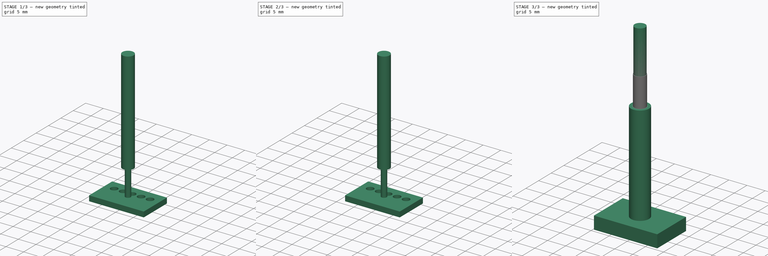
[diagram: build sequence overview — one tinted view per stage of 3, left to right]
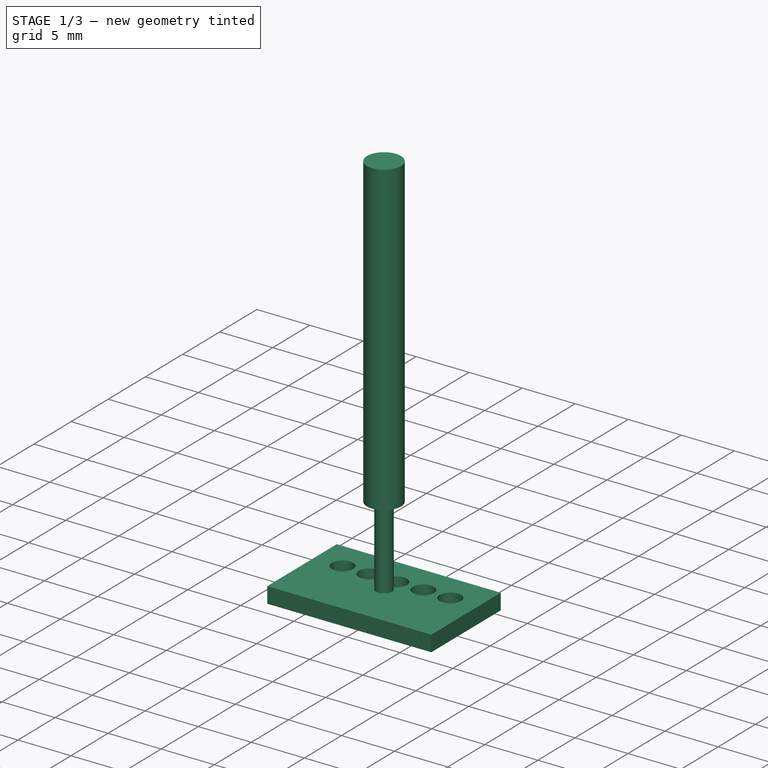
[diagram: stage 1 of 3 — iso view after this stage's code; geometry added in this stage tinted green]
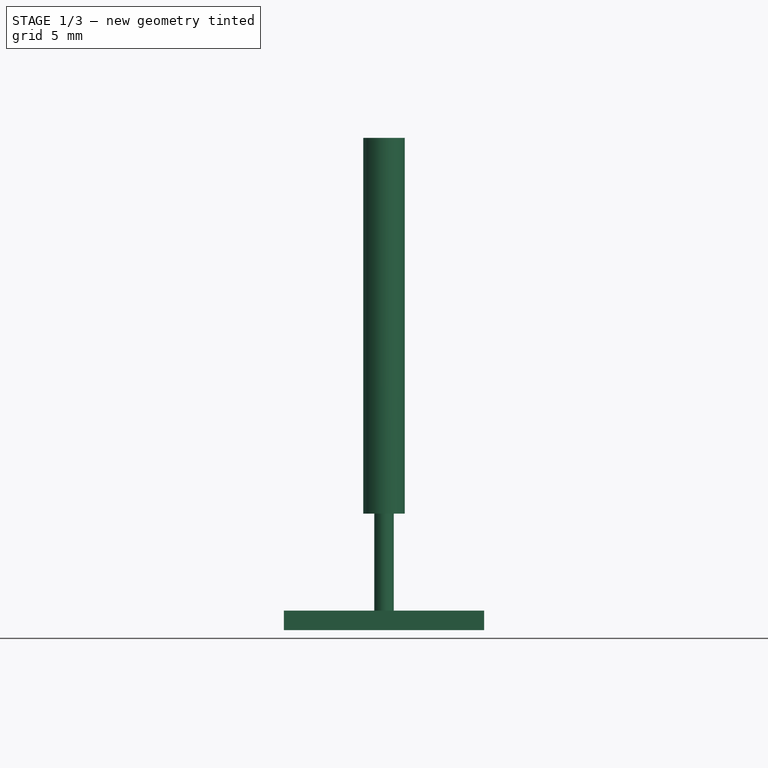
[diagram: stage 1 of 3 — front view after this stage's code; geometry added in this stage tinted green]
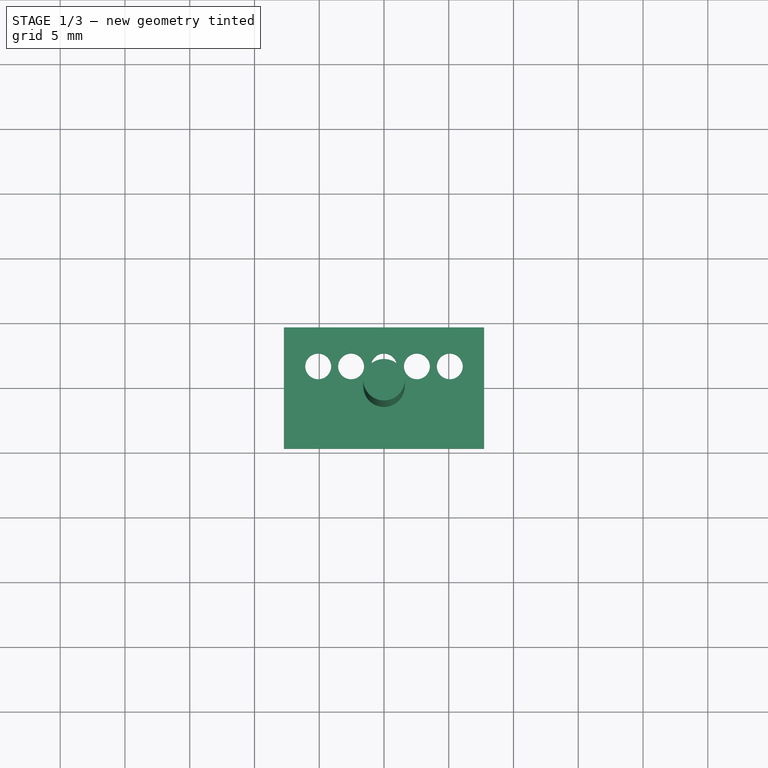
[diagram: stage 1 of 3 — top view after this stage's code; geometry added in this stage tinted green]
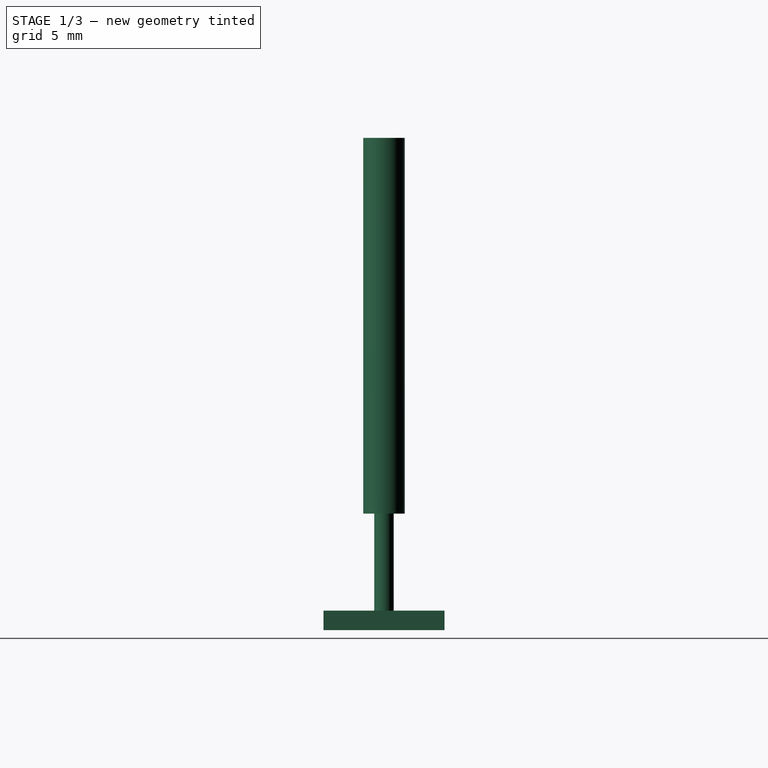
[diagram: stage 1 of 3 — right view after this stage's code; geometry added in this stage tinted green]
FCSTD DOCUMENT  (FreeCAD 0.20R29177 (Git))
Label: PCB connector without drilling gaps
License: All rights reserved
LicenseURL: http://en.wikipedia.org/wiki/All_rights_reserved
objects: Part::FeaturePython×4, Path::FeaturePython×4, App::DocumentObjectGroup×3, Sketcher::SketchObject×1, PartDesign::Pad×1, PartDesign::Body×1, App::FeaturePython×1
note: 9 computed .brp shape members not serialized (recipe doc carries the construction recipe); baked Part::Feature solids carry a one-line shape summary decoded from their .brp

FEATURE [Sketcher::SketchObject] Sketch
  FullyConstrained = true
  MapMode = 5
  Support = -> [XY_Plane]
  sketch-geometry (15):
    g0: LineSegment StartX=-7.73 StartY=4.675 StartZ=0 EndX=7.73 EndY=4.675 EndZ=0
    g1: LineSegment StartX=7.73 StartY=4.675 StartZ=0 EndX=7.73 EndY=-4.675 EndZ=0
    g2: LineSegment StartX=7.73 StartY=-4.675 StartZ=0 EndX=-7.73 EndY=-4.675 EndZ=0
    g3: LineSegment StartX=-7.73 StartY=-4.675 StartZ=0 EndX=-7.73 EndY=4.675 EndZ=0
    g4: LineSegment StartX=-7.73 StartY=1.675 StartZ=0 EndX=7.73 EndY=1.675 EndZ=0
    g5: LineSegment StartX=5.08 StartY=4.675 StartZ=0 EndX=5.08 EndY=-4.675 EndZ=0
    g6: LineSegment StartX=2.54 StartY=4.675 StartZ=0 EndX=2.54 EndY=-4.675 EndZ=0
    g7: LineSegment StartX=6e-16 StartY=-4.675 StartZ=0 EndX=6e-16 EndY=4.675 EndZ=0
    g8: LineSegment StartX=-2.54 StartY=4.675 StartZ=0 EndX=-2.54 EndY=-4.675 EndZ=0
    g9: LineSegment StartX=-5.08 StartY=-4.675 StartZ=0 EndX=-5.08 EndY=4.675 EndZ=0
    g10: Circle CenterX=5.08 CenterY=1.675 CenterZ=0 NormalX=0 NormalY=0 NormalZ=1 AngleXU=0 Radius=1
    g11: Circle CenterX=2.54 CenterY=1.675 CenterZ=0 NormalX=0 NormalY=0 NormalZ=1 AngleXU=0 Radius=1
    g12: Circle CenterX=6e-16 CenterY=1.675 CenterZ=0 NormalX=0 NormalY=0 NormalZ=1 AngleXU=0 Radius=1
    g13: Circle CenterX=-2.54 CenterY=1.675 CenterZ=0 NormalX=0 NormalY=0 NormalZ=1 AngleXU=0 Radius=1
    g14: Circle CenterX=-5.08 CenterY=1.675 CenterZ=0 NormalX=0 NormalY=0 NormalZ=1 AngleXU=0 Radius=1
  constraints (50):
    c: Coincident(g0,g1)
    c: Coincident(g1,g2)
    c: Coincident(g2,g3)
    c: Coincident(g3,g0)
    c: Horizontal(g0)
    c: Horizontal(g2)
    c: Vertical(g1)
    c: Vertical(g3)
    c: Symmetric(g0,g1,g-1)
    c: DistanceY(g3,g3) = 9.35
    c: DistanceX(g0,g0) = 15.46
    c: PointOnObject(g4,g3)
    c: PointOnObject(g4,g1)
    c: Horizontal(g4)
    c: PointOnObject(g5,g0)
    c: PointOnObject(g5,g2)
    c: Vertical(g5)
    c: Distance(g5,g0) = 2.65
    c: Distance(g4,g1) = 6.35
    c: PointOnObject(g6,g0)
    c: PointOnObject(g6,g2)
    c: Vertical(g6)
    c: PointOnObject(g7,g2)
    c: PointOnObject(g7,g0)
    c: Vertical(g7)
    c: PointOnObject(g8,g0)
    c: PointOnObject(g8,g2)
    c: Vertical(g8)
    c: PointOnObject(g9,g2)
    c: PointOnObject(g9,g0)
    c: Vertical(g9)
    c: Distance(g6,g5) = 2.54
    c: Distance(g6,g7) = 2.54
    c: Distance(g7,g8) = 2.54
    c: Distance(g8,g9) = 2.54
    c: PointOnObject(g10,g5)
    c: Diameter(g10) = 2
    c: PointOnObject(g10,g4)
    c: Diameter(g11) = 2
    c: Equal(g14,g13)
    c: Equal(g14,g12)
    c: Diameter(g14) = 2
    c: PointOnObject(g14,g4)
    c: PointOnObject(g14,g9)
    c: PointOnObject(g13,g4)
    c: PointOnObject(g13,g8)
    c: PointOnObject(g12,g4)
    c: PointOnObject(g12,g7)
    c: PointOnObject(g11,g4)
    c: PointOnObject(g11,g6)
FEATURE [PartDesign::Pad] Pad
  Direction = (0,0,1)
  Length = 1.5
  Length2 = 10
  Profile = -> Sketch
  ReferenceAxis = -> Sketch [N_Axis]
  Refine = true
  Type = 0
FEATURE [Part::FeaturePython] ToolBit001  label="1.5mm_Endmill"  # Path/CAM toolbit (typed FeaturePython)
  BitPropertyNames = Chipload | CuttingEdgeHeight | Diameter | Flutes | Length | Material | ShankDiameter | SpindleDirection
  BitShape = C:/Program Files/FreeCAD 0.20/Mod\Path\Tools\Shape\endmill.fcstd
  Chipload = 0
  CuttingEdgeHeight = 9
  Diameter = 1.5
  File = <userpath>/AppData/Roaming/FreeCAD/Macro/Bit/1.5mm_Endmill.fctb
  Flutes = 0
  Length = 38
  Material = 0
  ShankDiameter = 3.2
  ShapeName = endmill
  SpindleDirection = 0
FEATURE [Path::FeaturePython] __5mm_Endmill  label="1.5mm_Endmill001"  # Path/CAM operation (typed FeaturePython)
  HorizFeed = 0
  HorizRapid = 0
  SpindleDir = 0
  SpindleSpeed = 0
  Tool = -> ToolBit001
  ToolNumber = 2
  VertFeed = 0
  VertRapid = 0
  expr: HorizRapid = SetupSheet.HorizRapid
  expr: VertRapid = SetupSheet.VertRapid
FEATURE [App::DocumentObjectGroup] Tools
  Group = -> [TC__Default_Tool,__5mm_Endmill]
FEATURE [Path::FeaturePython] MillFace  # Path/CAM operation (typed FeaturePython)
  Active = true
  AreaParams:
    Tolerance = 1e-07
    FitArcs = True
    Simplify = False
    CleanDistance = 0.0
    Accuracy = 0.01
    Unit = 1.0
    MinArcPoints = 4
    MaxArcPoints = 100
    ClipperScale = 10000000.0
    Fill = 0
    Coplanar = 0
    Reorient = True
    Outline = False
    Explode = False
    OpenMode = 0
    Deflection = 0.01
    SubjectFill = 0
    ClipFill = 0
    Offset = 0.0
    ExtraPass = 0
    Stepover = 0.0
    LastStepover = 0.0
    JoinType = 0
    EndType = 0
    MiterLimit = 2.0
    RoundPrecision = 0.0
    PocketMode = 4
    ToolRadius = 0.75
    PocketExtraOffset = 0.0
    PocketStepover = 0.75
    PocketLastStepover = 0.0
    FromCenter = True
    Angle = 45.0
    AngleShift = 0.0
    Shift = 0.0
    Thicken = False
    SectionCount = -1
    Stepdown = 1.0
    SectionOffset = 0.0
    SectionTolerance = 1e-06
    SectionMode = 2
    Project = False
  Base = -> [Clone]
  BoundaryShape = 2
  ClearEdges = false
  ClearanceHeight = 7.5
  CoolantMode = 0
  CutMode = 0
  CycleTime = Cycletime Error
  ExcludeRaisedAreas = false
  ExtraOffset = 0
  FinalDepth = 0.2
  FinishDepth = 0
  KeepToolDown = false
  MinTravel = false
  OffsetPattern = 2
  OpFinalDepth = 1.5
  OpStartDepth = 2.5
  OpStockZMax = 2.5
  OpStockZMin = -1
  OpToolDiameter = 1.5
  PathParams = {'orientation': 1, 'feedrate': 0.0, 'feedrate_v': 0.0, 'verbose': True, 'resume_height': 5.5, 'retraction': 7.5, 'return_end': True, 'preamble': False, 'start': Vector (0.0, 0.0, 0.0)}
  PocketLastStepOver = 0
  SafeHeight = 5.5
  SplitArcs = false
  StartAt = 0
  StartDepth = 0
  StartPoint = (0,0,0)
  StepDown = 0.2
  StepOver = 50
  ToolController = -> __5mm_Endmill
  UseStartPoint = true
  ZigZagAngle = 45
  expr: ClearanceHeight = OpStockZMax + SetupSheet.ClearanceHeightOffset
  expr: FinalDepth = 0.2
  expr: SafeHeight = OpStockZMax + SetupSheet.SafeHeightOffset
  expr: StepDown = 0.2
FEATURE [App::DocumentObjectGroup] Operations
  Group = -> [MillFace]
FEATURE [Path::FeaturePython] Job  # Path/CAM operation (typed FeaturePython)
  CycleTime = 00:00:00
  Fixtures = G54
  GeometryTolerance = 0.01
  JobType = 0
  Model = -> Model
  Operations = -> Operations
  OrderOutputBy = 0
  PostProcessor = 8
  SetupSheet = -> SetupSheet
  SplitOutput = false
  Stock = -> Stock
  Tools = -> Tools
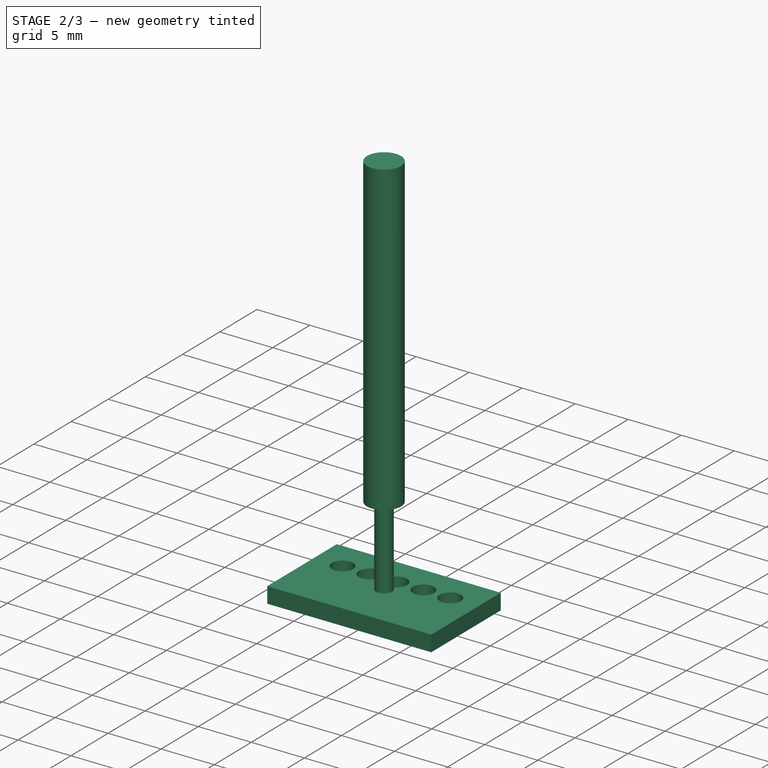
[diagram: stage 2 of 3 — iso view after this stage's code; geometry added in this stage tinted green]
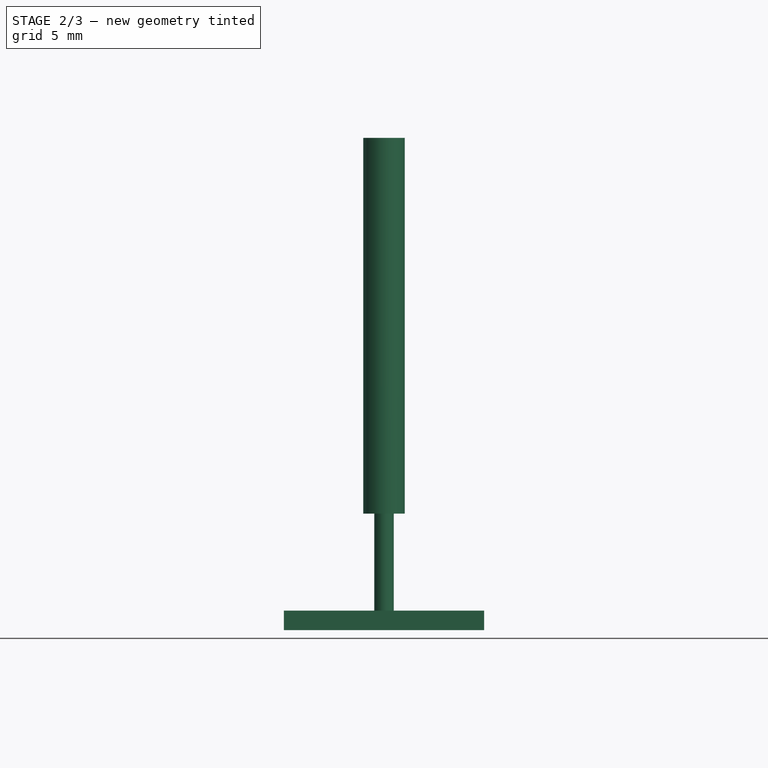
[diagram: stage 2 of 3 — front view after this stage's code; geometry added in this stage tinted green]
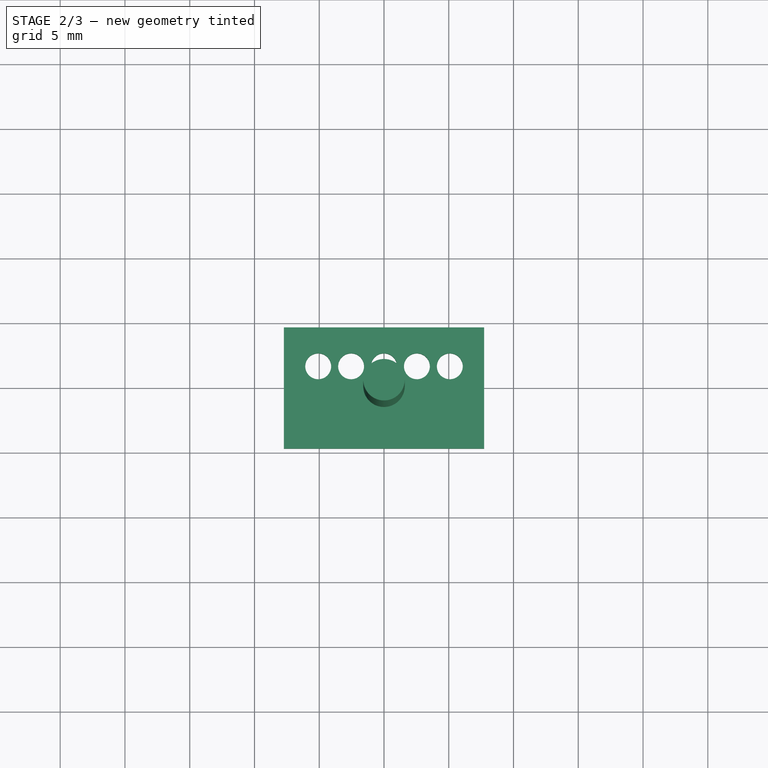
[diagram: stage 2 of 3 — top view after this stage's code; geometry added in this stage tinted green]
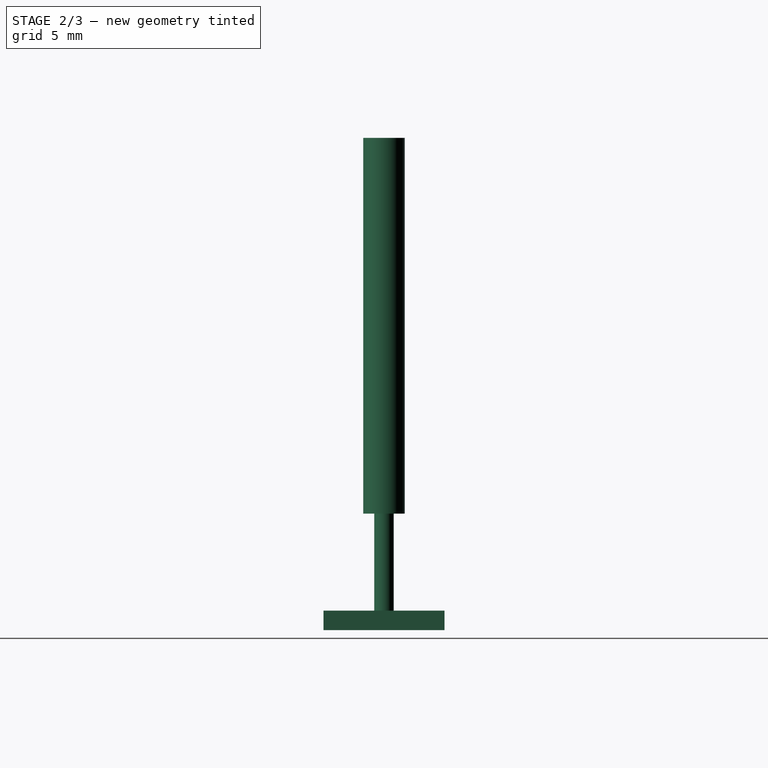
[diagram: stage 2 of 3 — right view after this stage's code; geometry added in this stage tinted green]
FEATURE [PartDesign::Body] Body
  Group = -> [Sketch,Pad]
  Origin = -> Origin
  Tip = -> Pad
FEATURE [App::FeaturePython] SetupSheet  # Path/CAM operation (typed FeaturePython)
  ClearanceHeightExpression = OpStockZMax+SetupSheet.ClearanceHeightOffset
  ClearanceHeightOffset = 5
  CoolantMode = 0
  CoolantModes = None | Flood | Mist
  FinalDepthExpression = OpFinalDepth
  HorizRapid = 0
  SafeHeightExpression = OpStockZMax+SetupSheet.SafeHeightOffset
  SafeHeightOffset = 3
  StartDepthExpression = OpStartDepth
  StepDownExpression = OpToolDiameter
  VertRapid = 0
FEATURE [Part::FeaturePython] Clone  label="Model-Body"  # Draft clone (typed FeaturePython)
  AttacherType = Attacher::AttachEngine3D
  Fuse = false
  Objects = -> [Body]
  PathResource = Model
  Scale = (1,1,1)
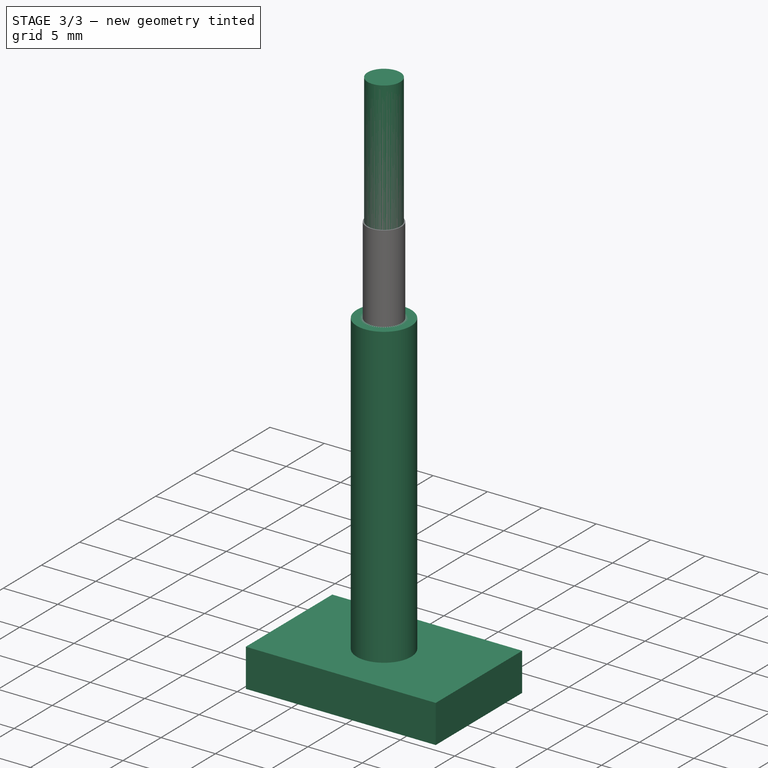
[diagram: stage 3 of 3 — iso view after this stage's code; geometry added in this stage tinted green]
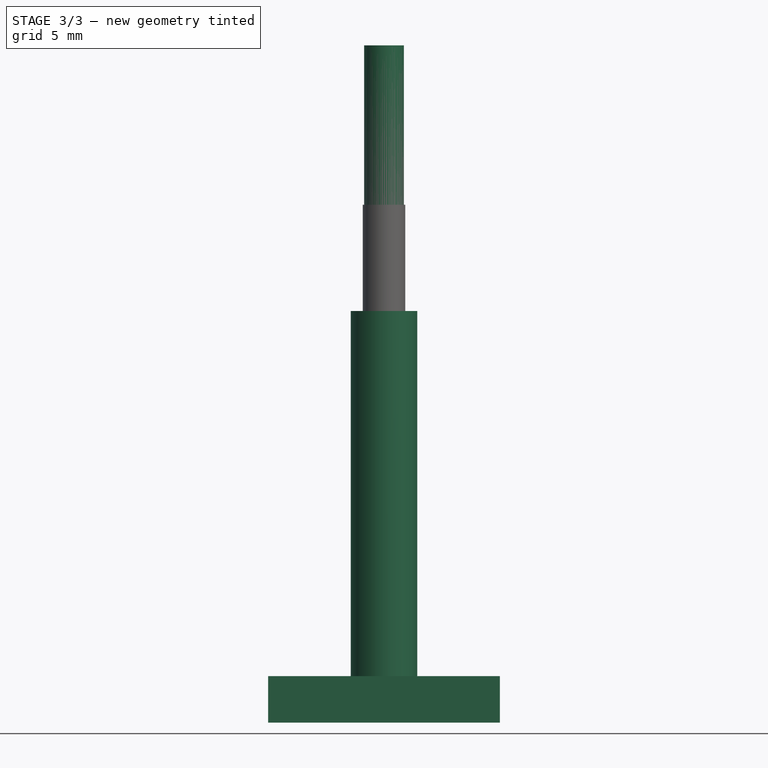
[diagram: stage 3 of 3 — front view after this stage's code; geometry added in this stage tinted green]
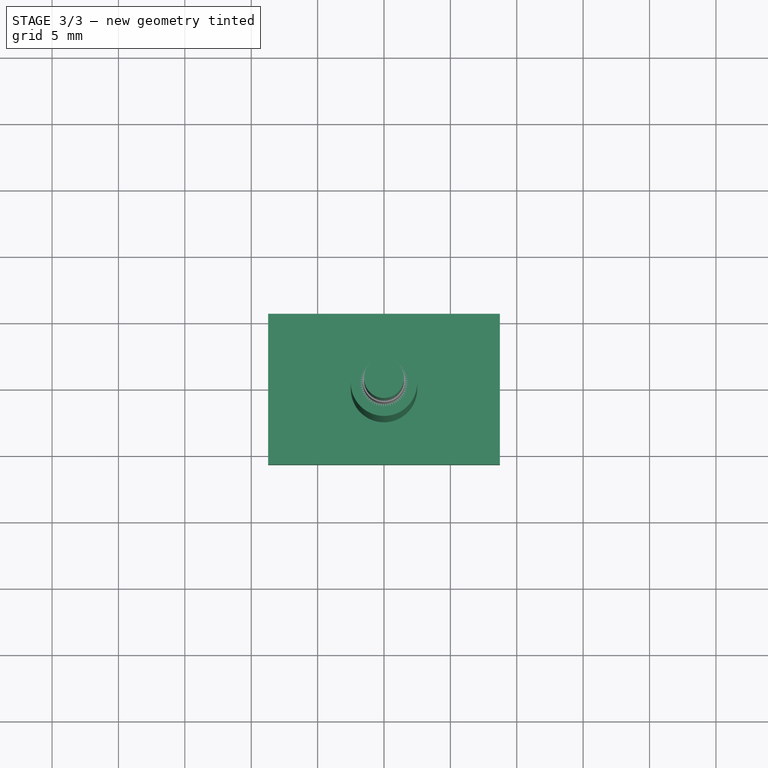
[diagram: stage 3 of 3 — top view after this stage's code; geometry added in this stage tinted green]
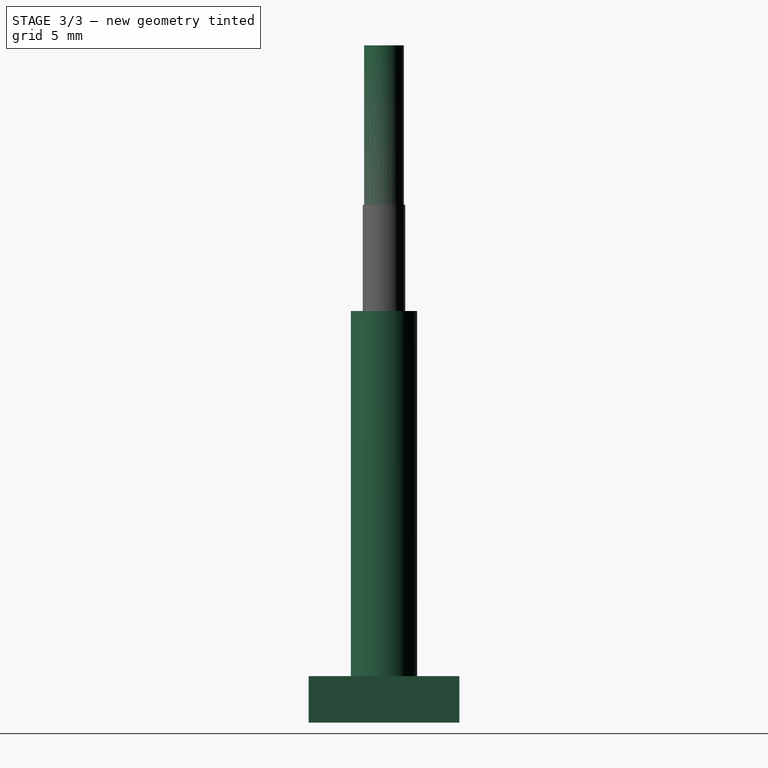
[diagram: stage 3 of 3 — right view after this stage's code; geometry added in this stage tinted green]
FEATURE [App::DocumentObjectGroup] Model
  Group = -> [Clone]
FEATURE [Part::FeaturePython] ToolBit  label="Endmill"  # Path/CAM toolbit (typed FeaturePython)
  BitPropertyNames = Chipload | CuttingEdgeHeight | Diameter | Flutes | Length | Material | ShankDiameter | SpindleDirection
  BitShape = C:/Program Files/FreeCAD 0.20/Mod\Path\Tools\Shape\endmill.fcstd
  Chipload = 0
  CuttingEdgeHeight = 30
  Diameter = 5
  Flutes = 0
  Length = 50
  Material = 0
  ShankDiameter = 3
  ShapeName = endmill
  SpindleDirection = 0
FEATURE [Path::FeaturePython] TC__Default_Tool  label="TC: Default Tool"  # Path/CAM operation (typed FeaturePython)
  HorizFeed = 0
  HorizRapid = 0
  SpindleDir = 0
  SpindleSpeed = 0
  Tool = -> ToolBit
  ToolNumber = 1
  VertFeed = 0
  VertRapid = 0
  expr: HorizRapid = SetupSheet.HorizRapid
  expr: VertRapid = SetupSheet.VertRapid
FEATURE [Part::FeaturePython] Stock  # WARN: FeaturePython — macro-defined, semantics opaque (R4)
  Base = -> Model
  ExtXneg = 1
  ExtXpos = 1
  ExtYneg = 1
  ExtYpos = 1
  ExtZneg = 1
  ExtZpos = 1
  Placement = pos=(-7.73,-4.675,0) rot=(0,0,1;0rad)
  StockType = FromBase
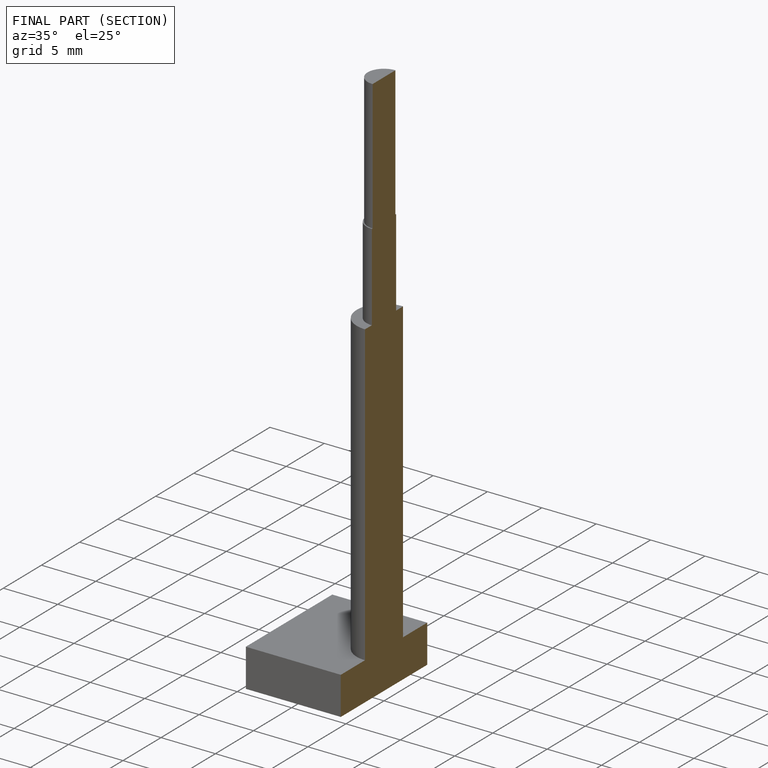
[diagram: finished part — half-section view (interior)]
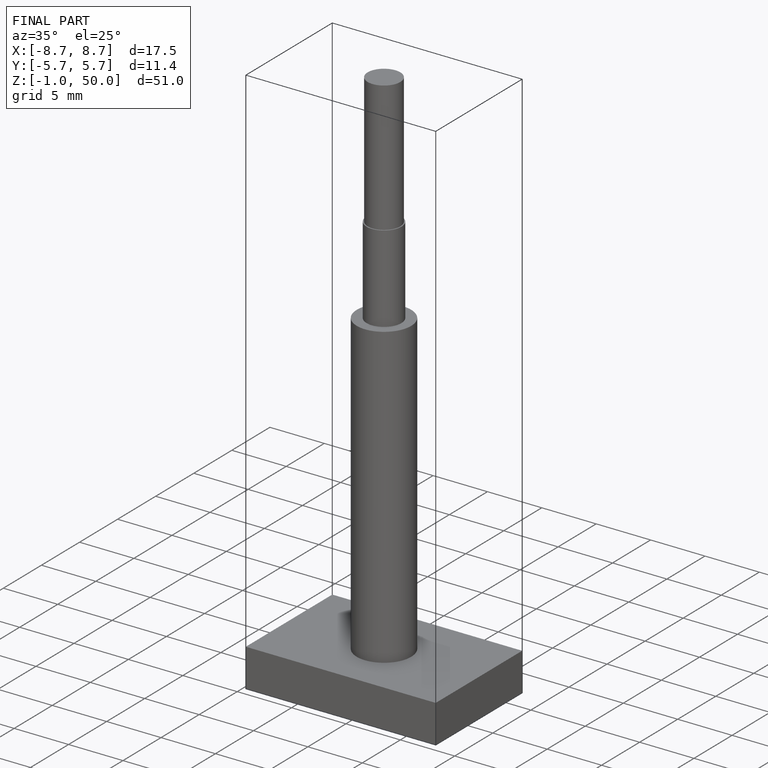
[diagram: finished part — iso view with bounding-box wireframe]
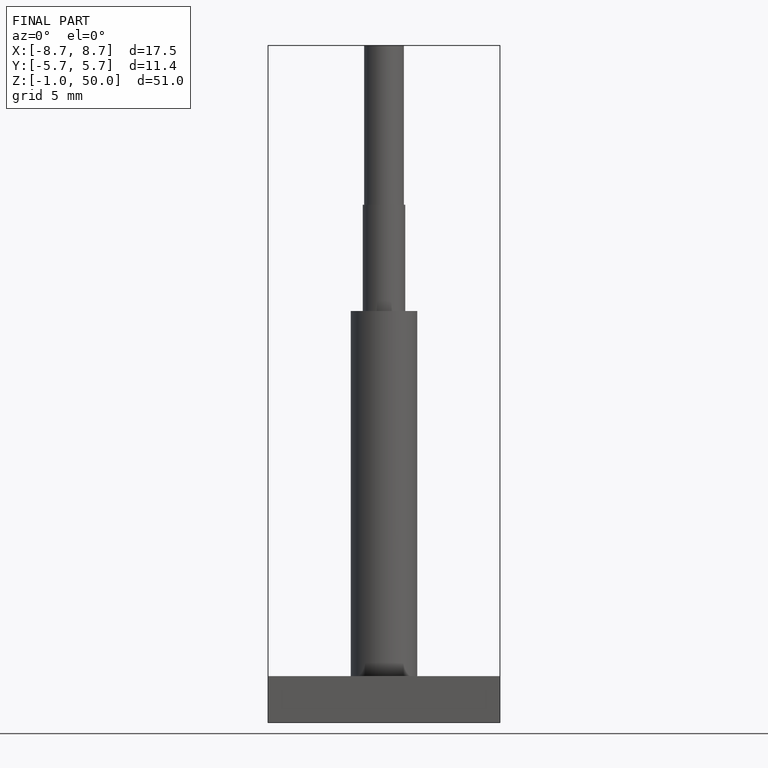
[diagram: finished part — front view with bounding-box wireframe]
